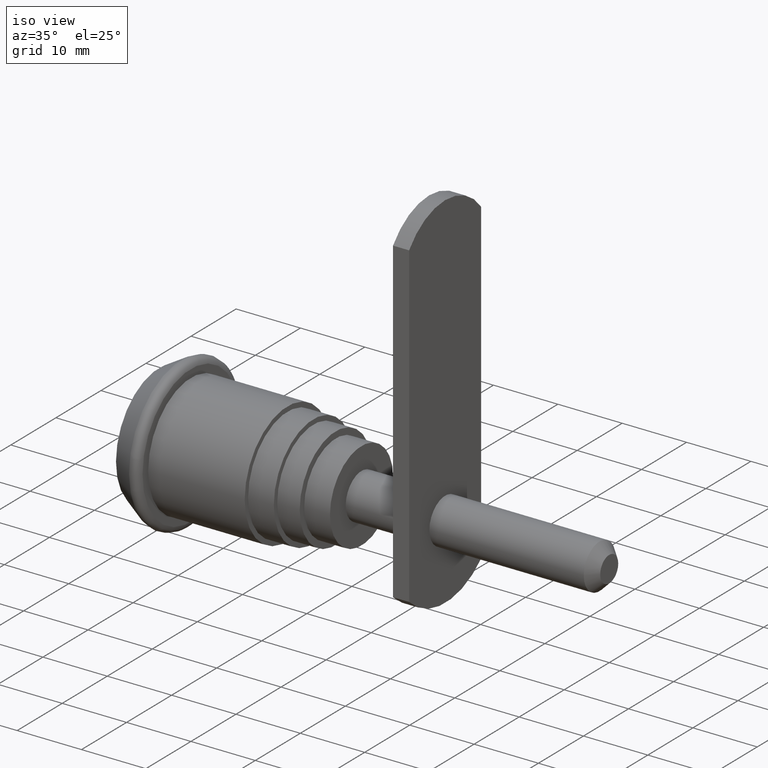
[diagram: clean part render]
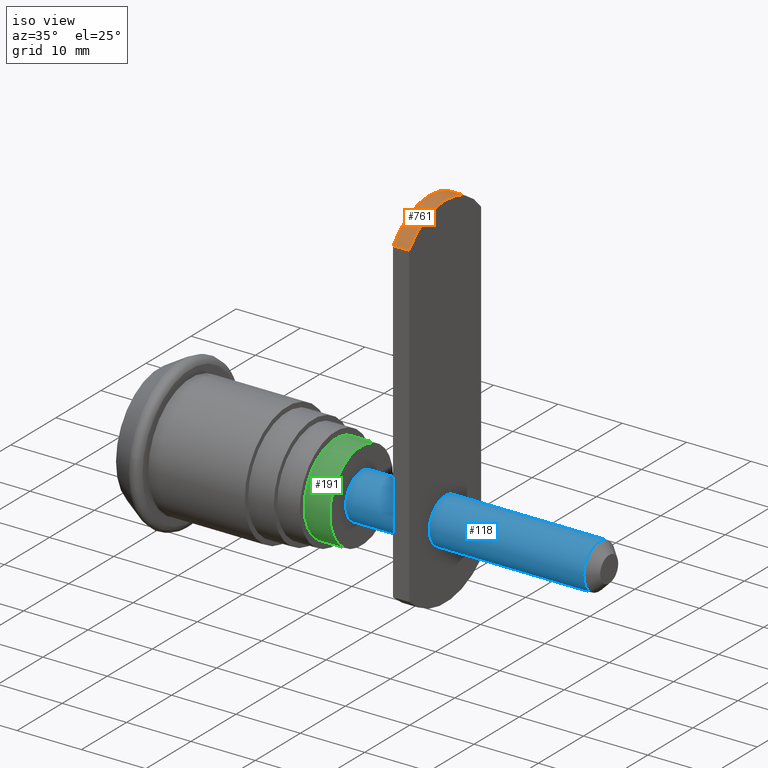
[diagram: same view with three faces highlighted in distinct colors, each labeled with its STEP entity id]
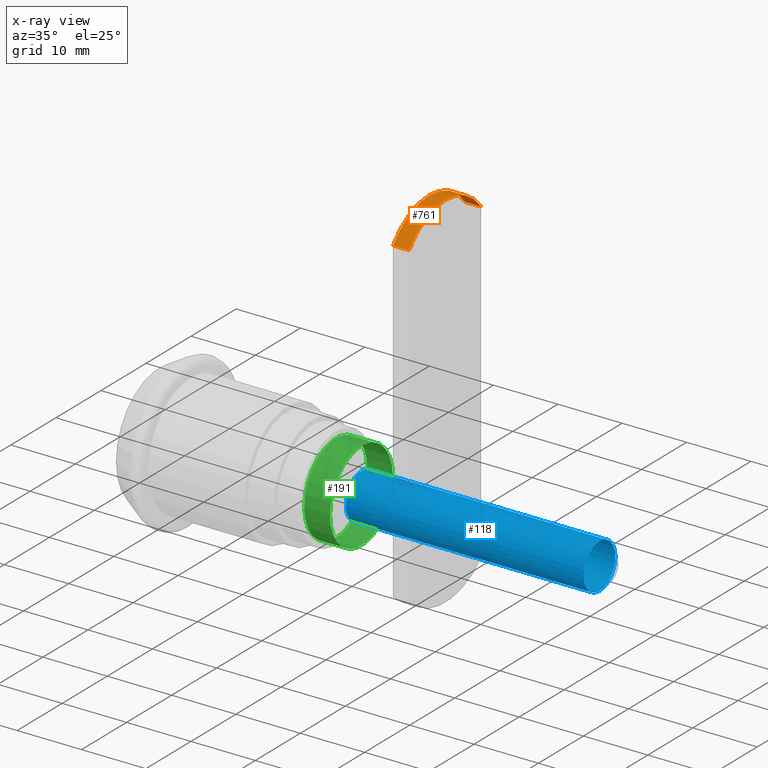
[diagram: x-ray of the same camera — body ghosted, the three highlighted faces saturated]
A machine part, iso view with three faces highlighted in distinct colors.
The next image is the same camera in x-ray (body ghosted, the three faces saturated) — at least one of them is partly hidden behind the body in this view.
Their STEP definitions:

[orange] entity #761 — the highlighted cylindrical surface (partial cylindrical patch) has radius 10 mm, axis along (-1, 0, 0).
#639=CARTESIAN_POINT('',(44.500000000000000,7.999999999968168,40.999999999835836));
#640=VERTEX_POINT('',#639);
#657=CARTESIAN_POINT('',(42.0,7.999999999968168,40.999999999835836));
#658=VERTEX_POINT('',#657);
#665=CARTESIAN_POINT('',(44.500000000000000,7.999999999968168,40.999999999835836));
#666=DIRECTION('',(-1.0,0.0,0.0));
#667=VECTOR('',#666,2.500000000000000);
#668=LINE('',#665,#667);
#669=EDGE_CURVE('',#640,#658,#668,.T.);
#712=CARTESIAN_POINT('',(44.500000000000000,-7.999999999968168,40.999999999835836));
#713=VERTEX_POINT('',#712);
#720=CARTESIAN_POINT('',(42.0,-7.999999999968168,40.999999999835836));
#721=VERTEX_POINT('',#720);
#722=CARTESIAN_POINT('',(44.500000000000000,-7.999999999968168,40.999999999835836));
#723=DIRECTION('',(-1.0,0.0,0.0));
#724=VECTOR('',#723,2.500000000000000);
#725=LINE('',#722,#724);
#726=EDGE_CURVE('',#713,#721,#725,.T.);
#738=CARTESIAN_POINT('',(44.500000000000000,0.0,34.999999999859938));
#739=DIRECTION('',(-1.0,0.0,0.0));
#740=DIRECTION('',(0.0,-0.800000000000011,0.599999999999986));
#741=AXIS2_PLACEMENT_3D('',#738,#739,#740);
#742=CYLINDRICAL_SURFACE('',#741,9.999999999960073);
#743=CARTESIAN_POINT('',(44.500000000000000,0.0,34.999999999859938));
#744=DIRECTION('',(-1.0,0.0,0.0));
#745=DIRECTION('',(0.0,0.800000000000011,-0.599999999999985));
#746=AXIS2_PLACEMENT_3D('',#743,#744,#745);
#747=CIRCLE('',#746,9.999999999960073);
#748=EDGE_CURVE('',#713,#640,#747,.T.);
#749=ORIENTED_EDGE('',*,*,#748,.T.);
#750=ORIENTED_EDGE('',*,*,#669,.T.);
#751=CARTESIAN_POINT('',(42.0,0.0,34.999999999859938));
#752=DIRECTION('',(-1.0,0.0,0.0));
#753=DIRECTION('',(0.0,0.800000000000011,-0.599999999999985));
#754=AXIS2_PLACEMENT_3D('',#751,#752,#753);
#755=CIRCLE('',#754,9.999999999960073);
#756=EDGE_CURVE('',#721,#658,#755,.T.);
#757=ORIENTED_EDGE('',*,*,#756,.F.);
#758=ORIENTED_EDGE('',*,*,#726,.F.);
#759=EDGE_LOOP('',(#749,#750,#757,#758));
#760=FACE_OUTER_BOUND('',#759,.T.);
#761=ADVANCED_FACE('',(#760),#742,.T.);

[blue] entity #118 — the highlighted cylindrical surface (bore or boss wall) has radius 3.5 mm, axis along (1, 0, 0).
#54=CARTESIAN_POINT('',(68.499999999726242,3.499999999985448,0.0));
#55=VERTEX_POINT('',#54);
#62=CARTESIAN_POINT('',(68.499999999726242,-3.499999999985448,0.0));
#63=VERTEX_POINT('',#62);
#64=CARTESIAN_POINT('',(68.499999999726242,0.0,0.0));
#65=DIRECTION('',(1.0,0.0,0.0));
#66=DIRECTION('',(0.0,1.0,0.0));
#67=AXIS2_PLACEMENT_3D('',#64,#65,#66);
#68=CIRCLE('',#67,3.499999999985448);
#69=EDGE_CURVE('',#55,#63,#68,.T.);
#71=CARTESIAN_POINT('',(68.499999999726242,0.0,0.0));
#72=DIRECTION('',(1.0,0.0,0.0));
#73=DIRECTION('',(0.0,1.0,0.0));
#74=AXIS2_PLACEMENT_3D('',#71,#72,#73);
#75=CIRCLE('',#74,3.499999999985448);
#76=EDGE_CURVE('',#63,#55,#75,.T.);
#84=CARTESIAN_POINT('',(68.499999999726242,0.0,0.0));
#85=DIRECTION('',(1.0,0.0,0.0));
#86=DIRECTION('',(0.0,1.0,0.0));
#87=AXIS2_PLACEMENT_3D('',#84,#85,#86);
#88=CYLINDRICAL_SURFACE('',#87,3.499999999985448);
#89=CARTESIAN_POINT('',(31.499999999874035,3.499999999985448,0.0));
#90=VERTEX_POINT('',#89);
#91=CARTESIAN_POINT('',(68.499999999726242,3.499999999985448,0.0));
#92=DIRECTION('',(-1.0,0.0,0.0));
#93=VECTOR('',#92,36.999999999852207);
#94=LINE('',#91,#93);
#95=EDGE_CURVE('',#55,#90,#94,.T.);
#96=ORIENTED_EDGE('',*,*,#95,.T.);
#97=CARTESIAN_POINT('',(31.499999999874035,-3.499999999985448,0.0));
#98=VERTEX_POINT('',#97);
#99=CARTESIAN_POINT('',(31.499999999874035,0.0,0.0));
#100=DIRECTION('',(1.0,0.0,0.0));
#101=DIRECTION('',(0.0,1.0,0.0));
#102=AXIS2_PLACEMENT_3D('',#99,#100,#101);
#103=CIRCLE('',#102,3.499999999985448);
#104=EDGE_CURVE('',#90,#98,#103,.T.);
#105=ORIENTED_EDGE('',*,*,#104,.T.);
#106=CARTESIAN_POINT('',(31.499999999874035,0.0,0.0));
#107=DIRECTION('',(1.0,0.0,0.0));
#108=DIRECTION('',(0.0,1.0,0.0));
#109=AXIS2_PLACEMENT_3D('',#106,#107,#108);
#110=CIRCLE('',#109,3.499999999985448);
#111=EDGE_CURVE('',#98,#90,#110,.T.);
#112=ORIENTED_EDGE('',*,*,#111,.T.);
#113=ORIENTED_EDGE('',*,*,#95,.F.);
#114=ORIENTED_EDGE('',*,*,#76,.F.);
#115=ORIENTED_EDGE('',*,*,#69,.F.);
#116=EDGE_LOOP('',(#96,#105,#112,#113,#114,#115));
#117=FACE_OUTER_BOUND('',#116,.T.);
#118=ADVANCED_FACE('',(#117),#88,.T.);

[green] entity #191 — the highlighted cylindrical surface (bore or boss wall) has radius 7 mm, axis along (1, 0, 0).
#136=CARTESIAN_POINT('',(31.499999999874035,6.999999999971806,0.0));
#137=VERTEX_POINT('',#136);
#138=CARTESIAN_POINT('',(31.499999999874035,-6.999999999971806,0.0));
#139=VERTEX_POINT('',#138);
#140=CARTESIAN_POINT('',(31.499999999874035,0.0,0.0));
#141=DIRECTION('',(1.0,0.0,0.0));
#142=DIRECTION('',(0.0,1.0,0.0));
#143=AXIS2_PLACEMENT_3D('',#140,#141,#142);
#144=CIRCLE('',#143,6.999999999971806);
#145=EDGE_CURVE('',#137,#139,#144,.T.);
#147=CARTESIAN_POINT('',(31.499999999874035,0.0,0.0));
#148=DIRECTION('',(1.0,0.0,0.0));
#149=DIRECTION('',(0.0,1.0,0.0));
#150=AXIS2_PLACEMENT_3D('',#147,#148,#149);
#151=CIRCLE('',#150,6.999999999971806);
#152=EDGE_CURVE('',#139,#137,#151,.T.);
#157=CARTESIAN_POINT('',(31.499999999874035,0.0,0.0));
#158=DIRECTION('',(1.0,0.0,0.0));
#159=DIRECTION('',(0.0,1.0,0.0));
#160=AXIS2_PLACEMENT_3D('',#157,#158,#159);
#161=CYLINDRICAL_SURFACE('',#160,6.999999999971806);
#162=CARTESIAN_POINT('',(27.499999999969077,6.999999999971806,0.0));
#163=VERTEX_POINT('',#162);
#164=CARTESIAN_POINT('',(31.499999999874035,6.999999999971806,0.0));
#165=DIRECTION('',(-1.0,0.0,0.0));
#166=VECTOR('',#165,3.999999999904958);
#167=LINE('',#164,#166);
#168=EDGE_CURVE('',#137,#163,#167,.T.);
#169=ORIENTED_EDGE('',*,*,#168,.T.);
#170=CARTESIAN_POINT('',(27.499999999969077,-6.999999999971806,0.0));
#171=VERTEX_POINT('',#170);
#172=CARTESIAN_POINT('',(27.499999999969077,0.0,0.0));
#173=DIRECTION('',(1.0,0.0,0.0));
#174=DIRECTION('',(0.0,1.0,0.0));
#175=AXIS2_PLACEMENT_3D('',#172,#173,#174);
#176=CIRCLE('',#175,6.999999999971806);
#177=EDGE_CURVE('',#163,#171,#176,.T.);
#178=ORIENTED_EDGE('',*,*,#177,.T.);
#179=CARTESIAN_POINT('',(27.499999999969077,0.0,0.0));
#180=DIRECTION('',(1.0,0.0,0.0));
#181=DIRECTION('',(0.0,1.0,0.0));
#182=AXIS2_PLACEMENT_3D('',#179,#180,#181);
#183=CIRCLE('',#182,6.999999999971806);
#184=EDGE_CURVE('',#171,#163,#183,.T.);
#185=ORIENTED_EDGE('',*,*,#184,.T.);
#186=ORIENTED_EDGE('',*,*,#168,.F.);
#187=ORIENTED_EDGE('',*,*,#152,.F.);
#188=ORIENTED_EDGE('',*,*,#145,.F.);
#189=EDGE_LOOP('',(#169,#178,#185,#186,#187,#188));
#190=FACE_OUTER_BOUND('',#189,.T.);
#191=ADVANCED_FACE('',(#190),#161,.T.);